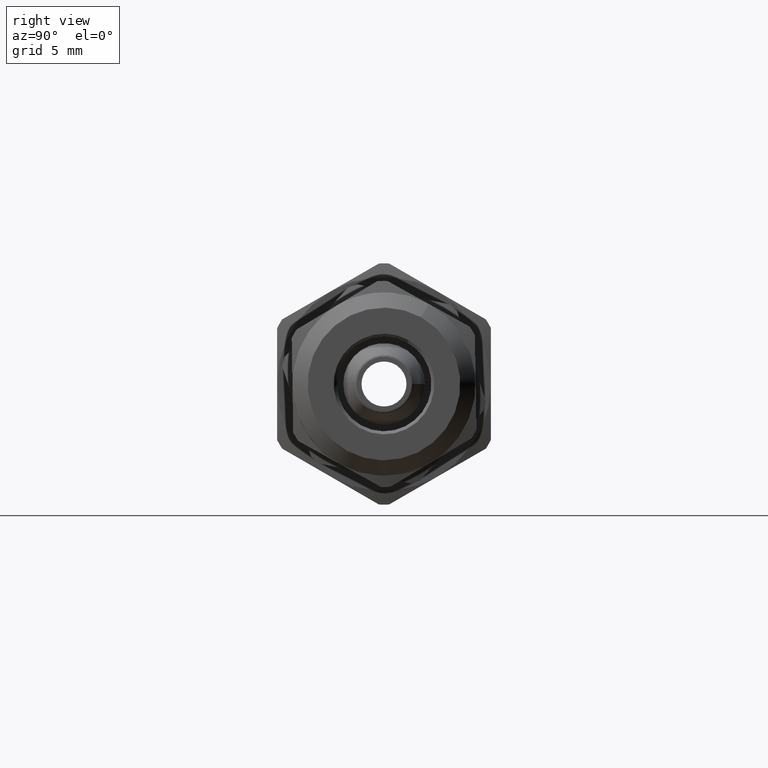
[diagram: clean part render]
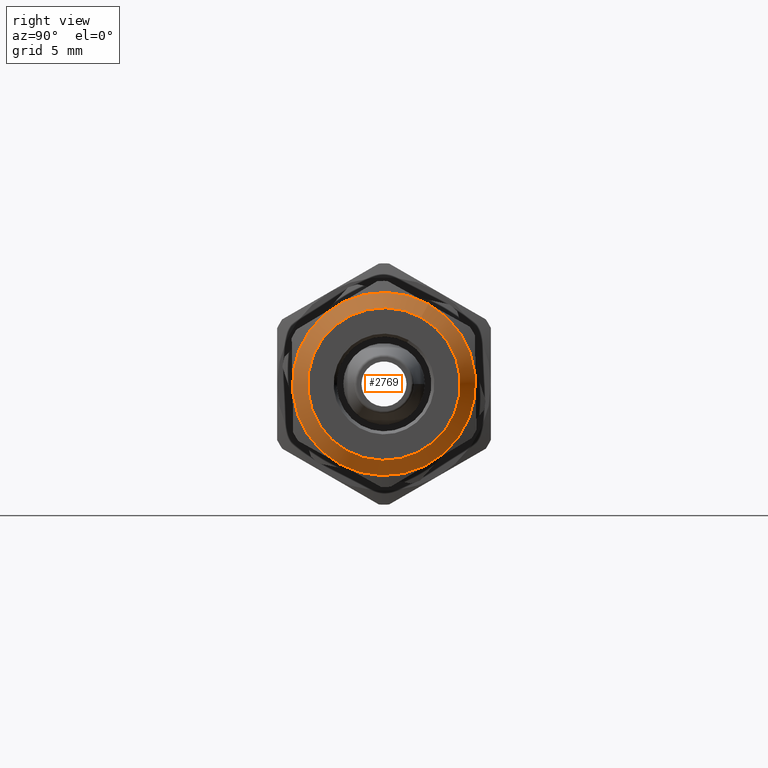
[diagram: same view with one face highlighted and labeled with its STEP entity id]
A machine part, right view. The second image highlights one B-rep face of the part: STEP entity #2769.
In plain terms, the highlighted conical surface has half-angle 45 deg.
Its self-contained STEP definition (entity closure, byte-faithful):
#2742=CARTESIAN_POINT('',(0.5,6.123234E-017,0.0));
#2743=DIRECTION('',(1.0,1.224647E-016,0.0));
#2744=DIRECTION('',(0.0,-1.0,0.0));
#2745=AXIS2_PLACEMENT_3D('',#2742,#2743,#2744);
#2746=CONICAL_SURFACE('',#2745,5.5,44.999999999999986);
#2747=CARTESIAN_POINT('',(-5.721189E-017,5.000000000000001,6.123234E-016));
#2748=VERTEX_POINT('',#2747);
#2749=CARTESIAN_POINT('',(5.551115E-016,9.244464E-032,0.0));
#2750=DIRECTION('',(1.0,0.0,0.0));
#2751=DIRECTION('',(0.0,-1.0,0.0));
#2752=AXIS2_PLACEMENT_3D('',#2749,#2750,#2751);
#2753=CIRCLE('',#2752,5.000000000000001);
#2754=EDGE_CURVE('',#2748,#2748,#2753,.T.);
#2755=ORIENTED_EDGE('',*,*,#2754,.T.);
#2756=EDGE_LOOP('',(#2755));
#2757=FACE_OUTER_BOUND('',#2756,.T.);
#2758=CARTESIAN_POINT('',(1.0,6.000000000000001,-7.347881E-016));
#2759=VERTEX_POINT('',#2758);
#2760=CARTESIAN_POINT('',(1.0,1.224647E-016,0.0));
#2761=DIRECTION('',(-1.0,0.0,0.0));
#2762=DIRECTION('',(0.0,-1.0,0.0));
#2763=AXIS2_PLACEMENT_3D('',#2760,#2761,#2762);
#2764=CIRCLE('',#2763,6.000000000000001);
#2765=EDGE_CURVE('',#2759,#2759,#2764,.T.);
#2766=ORIENTED_EDGE('',*,*,#2765,.T.);
#2767=EDGE_LOOP('',(#2766));
#2768=FACE_BOUND('',#2767,.T.);
#2769=ADVANCED_FACE('',(#2757,#2768),#2746,.T.);